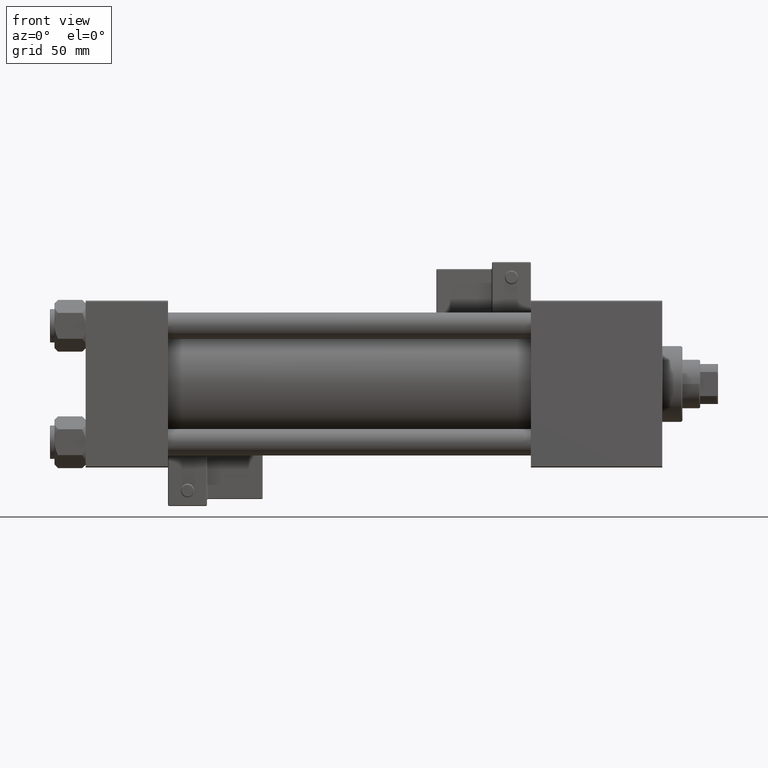
[diagram: clean part render]
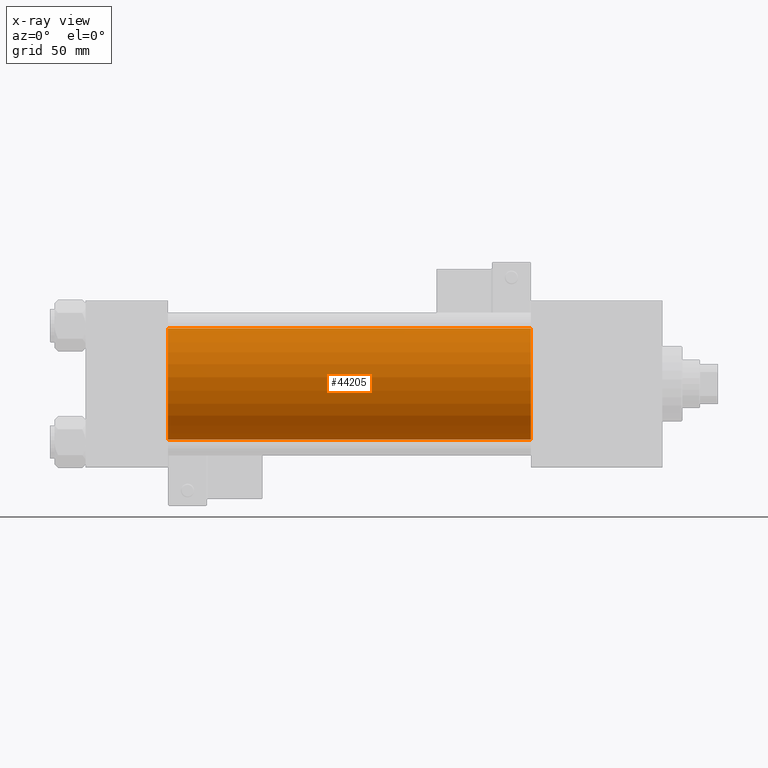
[diagram: x-ray — body ghosted, one internal face saturated and labeled with its STEP entity id]
A machine part, front view, then the same camera in x-ray: the body is ghosted and one INTERNAL B-rep face — a face not visible from any outside direction — is saturated and labeled: STEP entity #44205.
In plain terms, the highlighted cylindrical surface (partial cylindrical patch) has radius 25 mm, axis along (-1, -0, -0).
Its self-contained STEP definition (entity closure, byte-faithful):
#2394 = CARTESIAN_POINT ( 'NONE',  ( 200.0000000000000000, -2.602085213965210642E-15, 25.00000000000000000 ) ) ;
#4068 = AXIS2_PLACEMENT_3D ( 'NONE', #16288, #20527, #12042 ) ;
#6526 = CARTESIAN_POINT ( 'NONE',  ( 37.00000000000000000, 4.595317839031724996E-16, -25.00000000000000000 ) ) ;
#8865 = ORIENTED_EDGE ( 'NONE', *, *, #29690, .F. ) ;
#11086 = DIRECTION ( 'NONE',  ( 0.000000000000000000, 0.000000000000000000, -1.000000000000000000 ) ) ;
#12042 = DIRECTION ( 'NONE',  ( 0.000000000000000000, 0.000000000000000000, 1.000000000000000000 ) ) ;
#15332 = CARTESIAN_POINT ( 'NONE',  ( 200.0000000000000000, 4.595317839031724996E-16, -25.00000000000000000 ) ) ;
#15432 = DIRECTION ( 'NONE',  ( -1.000000000000000000, -0.000000000000000000, -0.000000000000000000 ) ) ;
#15574 = EDGE_CURVE ( 'NONE', #48727, #41771, #45059, .T. ) ;
#16288 = CARTESIAN_POINT ( 'NONE',  ( 200.0000000000000000, -2.602085213965210642E-15, 0.000000000000000000 ) ) ;
#16765 = CARTESIAN_POINT ( 'NONE',  ( 200.0000000000000000, -2.602085213965210642E-15, 25.00000000000000000 ) ) ;
#19357 = AXIS2_PLACEMENT_3D ( 'NONE', #43507, #24078, #11086 ) ;
#20527 = DIRECTION ( 'NONE',  ( -1.000000000000000000, -0.000000000000000000, -0.000000000000000000 ) ) ;
#21576 = EDGE_CURVE ( 'NONE', #49059, #41771, #48628, .T. ) ;
#22308 = DIRECTION ( 'NONE',  ( -1.000000000000000000, -0.000000000000000000, -0.000000000000000000 ) ) ;
#24078 = DIRECTION ( 'NONE',  ( 1.000000000000000000, 0.000000000000000000, 0.000000000000000000 ) ) ;
#24174 = CARTESIAN_POINT ( 'NONE',  ( 200.0000000000000000, 4.595317839031724996E-16, -25.00000000000000000 ) ) ;
#24926 = CARTESIAN_POINT ( 'NONE',  ( 37.00000000000000000, -2.602085213965210642E-15, 25.00000000000000000 ) ) ;
#25638 = CARTESIAN_POINT ( 'NONE',  ( 37.00000000000000000, -2.602085213965210642E-15, 0.000000000000000000 ) ) ;
#27723 = CYLINDRICAL_SURFACE ( 'NONE', #4068, 25.00000000000000000 ) ;
#29114 = DIRECTION ( 'NONE',  ( 1.000000000000000000, 0.000000000000000000, 0.000000000000000000 ) ) ;
#29690 = EDGE_CURVE ( 'NONE', #48425, #48727, #42526, .T. ) ;
#30030 = VECTOR ( 'NONE', #15432, 1000.000000000000000 ) ;
#30656 = AXIS2_PLACEMENT_3D ( 'NONE', #25638, #29114, #37615 ) ;
#32226 = FACE_OUTER_BOUND ( 'NONE', #42372, .T. ) ;
#34644 = ORIENTED_EDGE ( 'NONE', *, *, #15574, .F. ) ;
#37615 = DIRECTION ( 'NONE',  ( 0.000000000000000000, 0.000000000000000000, -1.000000000000000000 ) ) ;
#41771 = VERTEX_POINT ( 'NONE', #6526 ) ;
#42294 = CIRCLE ( 'NONE', #19357, 25.00000000000000000 ) ;
#42372 = EDGE_LOOP ( 'NONE', ( #47585, #43757, #34644, #8865 ) ) ;
#42526 = LINE ( 'NONE', #2394, #50572 ) ;
#43507 = CARTESIAN_POINT ( 'NONE',  ( 200.0000000000000000, -2.602085213965210642E-15, 0.000000000000000000 ) ) ;
#43757 = ORIENTED_EDGE ( 'NONE', *, *, #21576, .T. ) ;
#44205 = ADVANCED_FACE ( 'NONE', ( #32226 ), #27723, .F. ) ;
#45059 = CIRCLE ( 'NONE', #30656, 25.00000000000000000 ) ;
#47585 = ORIENTED_EDGE ( 'NONE', *, *, #47997, .T. ) ;
#47997 = EDGE_CURVE ( 'NONE', #48425, #49059, #42294, .T. ) ;
#48425 = VERTEX_POINT ( 'NONE', #16765 ) ;
#48628 = LINE ( 'NONE', #24174, #30030 ) ;
#48727 = VERTEX_POINT ( 'NONE', #24926 ) ;
#49059 = VERTEX_POINT ( 'NONE', #15332 ) ;
#50572 = VECTOR ( 'NONE', #22308, 1000.000000000000000 ) ;